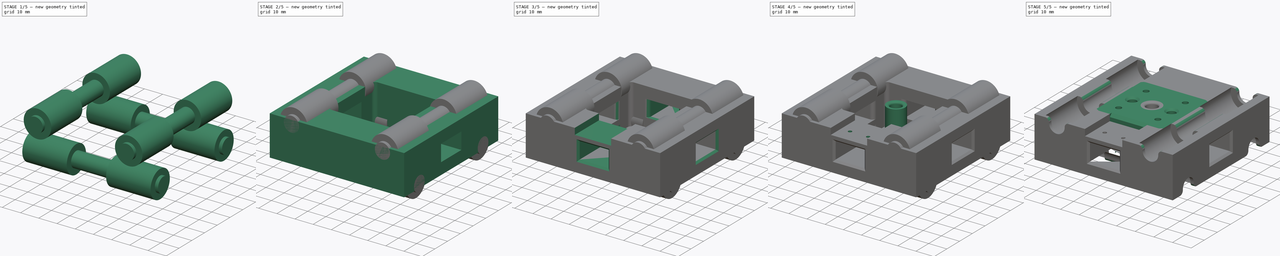
[diagram: build sequence overview — one tinted view per stage of 5, left to right]
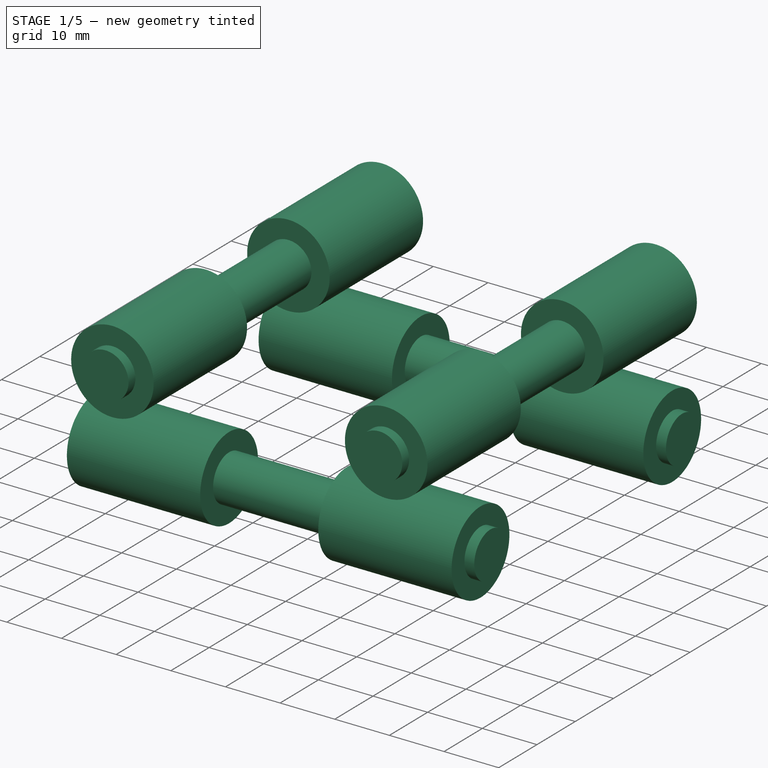
[diagram: stage 1 of 5 — iso view after this stage's code; geometry added in this stage tinted green]
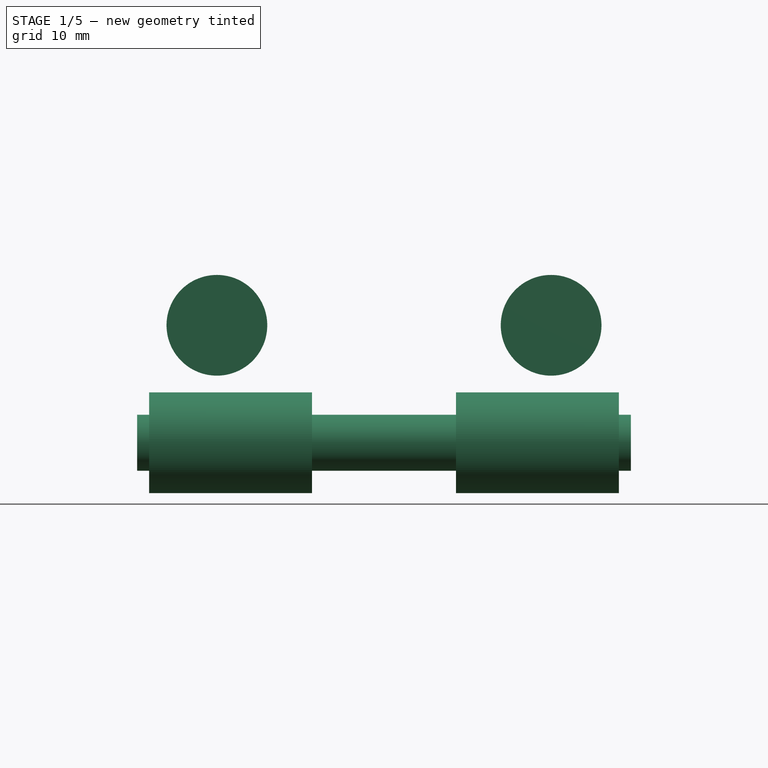
[diagram: stage 1 of 5 — front view after this stage's code; geometry added in this stage tinted green]
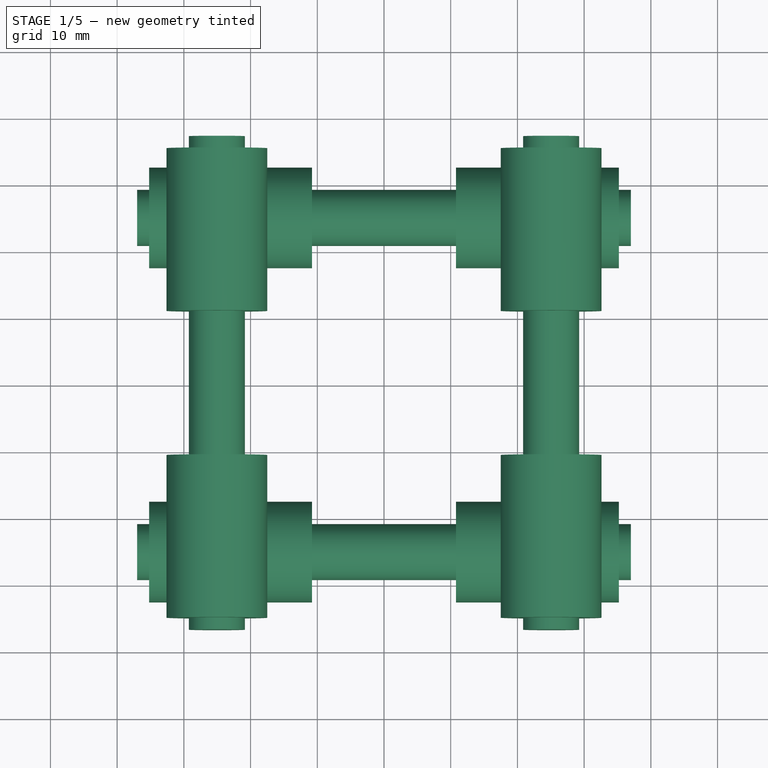
[diagram: stage 1 of 5 — top view after this stage's code; geometry added in this stage tinted green]
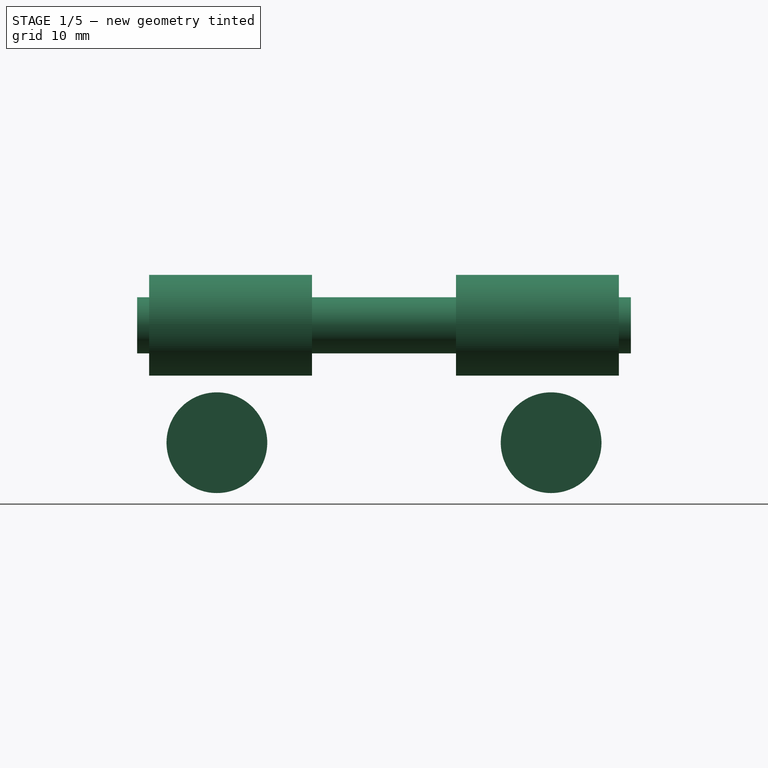
[diagram: stage 1 of 5 — right view after this stage's code; geometry added in this stage tinted green]
FCSTD DOCUMENT  (FreeCAD 0.19R24276 (Git))
Label: plotter-bearings-block
License: All rights reserved
LicenseURL: http://en.wikipedia.org/wiki/All_rights_reserved
objects: Sketcher::SketchObject×14, PartDesign::Body×8, PartDesign::Pocket×6, PartDesign::Pad×4, PartDesign::Revolution×4, PartDesign::Fillet×2, PartDesign::Chamfer×2, Part::MultiFuse×2, Spreadsheet::Sheet×1, Part::Cut×1, Part::Fillet×1, Part::Chamfer×1, App::Part×1
note: 63 computed .brp shape members not serialized (recipe doc carries the construction recipe); baked Part::Feature solids carry a one-line shape summary decoded from their .brp

FEATURE [Sketcher::SketchObject] Sketch025
  FullyConstrained = true
  MapMode = 5
  Placement = pos=(0,0,0) rot=(0.57735,0.57735,0.57735;2.0944rad)
  Support = -> [YZ_Plane006]
  expr: Constraints[27] = Spreadsheet.lm8uu_d / 2
  expr: Constraints[25] = Spreadsheet.lm8uu_l + 0.4
  expr: Constraints[24] = Spreadsheet.core_length
  sketch-geometry (12):
    g0: LineSegment StartX=-37 StartY=4.2 StartZ=0 EndX=-37 EndY=0 EndZ=0
    g1: LineSegment StartX=-37 StartY=0 StartZ=0 EndX=37 EndY=0 EndZ=0
    g2: LineSegment StartX=37 StartY=0 StartZ=0 EndX=37 EndY=4.2 EndZ=0
    g3: LineSegment StartX=37 StartY=4.2 StartZ=0 EndX=35.2 EndY=4.2 EndZ=0
    g4: LineSegment StartX=35.2 StartY=4.2 StartZ=0 EndX=35.2 EndY=7.55 EndZ=0
    g5: LineSegment StartX=35.2 StartY=7.55 StartZ=0 EndX=10.8 EndY=7.55 EndZ=0
    g6: LineSegment StartX=10.8 StartY=7.55 StartZ=0 EndX=10.8 EndY=4.2 EndZ=0
    g7: LineSegment StartX=10.8 StartY=4.2 StartZ=0 EndX=-10.8 EndY=4.2 EndZ=0
    g8: LineSegment StartX=-10.8 StartY=4.2 StartZ=0 EndX=-10.8 EndY=7.55 EndZ=0
    g9: LineSegment StartX=-10.8 StartY=7.55 StartZ=0 EndX=-35.2 EndY=7.55 EndZ=0
    g10: LineSegment StartX=-35.2 StartY=7.55 StartZ=0 EndX=-35.2 EndY=4.2 EndZ=0
    g11: LineSegment StartX=-35.2 StartY=4.2 StartZ=0 EndX=-37 EndY=4.2 EndZ=0
  constraints (30):
    c: PointOnObject(g0,g-1)
    c: Vertical(g0)
    c: Coincident(g0,g1)
    c: Coincident(g1,g2)
    c: Coincident(g2,g3)
    c: Horizontal(g3)
    c: Coincident(g3,g4)
    c: Vertical(g4)
    c: Coincident(g4,g5)
    c: Horizontal(g5)
    c: Coincident(g5,g6)
    c: Vertical(g6)
    c: Coincident(g6,g7)
    c: Coincident(g7,g8)
    c: Coincident(g8,g9)
    c: Coincident(g9,g10)
    c: Coincident(g10,g11)
    c: Coincident(g11,g0)
    c: Symmetric(g0,g1,g-1)
    c: Symmetric(g0,g2,g-2)
    c: Symmetric(g10,g3,g-2)
    c: Symmetric(g9,g4,g-2)
    c: Symmetric(g8,g5,g-2)
    c: Symmetric(g7,g6,g-2)
    c: DistanceX(g1,g1) = 74
    c: DistanceX(g9,g9) = 24.4
    c: DistanceY(g2,g2) = 4.2
    c: DistanceY(g1,g4) = 7.55
    c: Horizontal(g6,g2)
    c: DistanceX(g7,g7) = 21.6
FEATURE [PartDesign::Revolution] Revolution
  Angle = 360
  Axis = (1e-16,1,-1e-16)
  Base = (0,0,0)
  Placement = pos=(0,0,0) rot=(0.57735,0.57735,0.57735;2.0944rad)
  Profile = -> Sketch025
  ReferenceAxis = -> Y_Axis006
FEATURE [PartDesign::Body] Body005
  Group = -> [Sketch025,Revolution]
  Origin = -> Origin006
  Placement = pos=(25.05,0,19.8) rot=(0,0,1;0rad)
  Tip = -> Revolution
  expr: .Placement.Base.z = Spreadsheet.core_height / 2 + (Spreadsheet.belt_hole_height + Spreadsheet.rod_d) / 2
FEATURE [Sketcher::SketchObject] Sketch026
  FullyConstrained = true
  MapMode = 5
  Placement = pos=(0,0,0) rot=(0.57735,0.57735,0.57735;2.0944rad)
  Support = -> [YZ_Plane007]
  expr: Constraints[24] = Spreadsheet.core_length
  expr: Constraints[25] = Spreadsheet.lm8uu_l + 0.4
  expr: Constraints[27] = Spreadsheet.lm8uu_d / 2
  sketch-geometry (12):
    g0: LineSegment StartX=-37 StartY=4.2 StartZ=0 EndX=-37 EndY=0 EndZ=0
    g1: LineSegment StartX=-37 StartY=0 StartZ=0 EndX=37 EndY=0 EndZ=0
    g2: LineSegment StartX=37 StartY=0 StartZ=0 EndX=37 EndY=4.2 EndZ=0
    g3: LineSegment StartX=37 StartY=4.2 StartZ=0 EndX=35.2 EndY=4.2 EndZ=0
    g4: LineSegment StartX=35.2 StartY=4.2 StartZ=0 EndX=35.2 EndY=7.55 EndZ=0
    g5: LineSegment StartX=35.2 StartY=7.55 StartZ=0 EndX=10.8 EndY=7.55 EndZ=0
    g6: LineSegment StartX=10.8 StartY=7.55 StartZ=0 EndX=10.8 EndY=4.2 EndZ=0
    g7: LineSegment StartX=10.8 StartY=4.2 StartZ=0 EndX=-10.8 EndY=4.2 EndZ=0
    g8: LineSegment StartX=-10.8 StartY=4.2 StartZ=0 EndX=-10.8 EndY=7.55 EndZ=0
    g9: LineSegment StartX=-10.8 StartY=7.55 StartZ=0 EndX=-35.2 EndY=7.55 EndZ=0
    g10: LineSegment StartX=-35.2 StartY=7.55 StartZ=0 EndX=-35.2 EndY=4.2 EndZ=0
    g11: LineSegment StartX=-35.2 StartY=4.2 StartZ=0 EndX=-37 EndY=4.2 EndZ=0
  constraints (30):
    c: PointOnObject(g0,g-1)
    c: Vertical(g0)
    c: Coincident(g0,g1)
    c: Coincident(g1,g2)
    c: Coincident(g2,g3)
    c: Horizontal(g3)
    c: Coincident(g3,g4)
    c: Vertical(g4)
    c: Coincident(g4,g5)
    c: Horizontal(g5)
    c: Coincident(g5,g6)
    c: Vertical(g6)
    c: Coincident(g6,g7)
    c: Coincident(g7,g8)
    c: Coincident(g8,g9)
    c: Coincident(g9,g10)
    c: Coincident(g10,g11)
    c: Coincident(g11,g0)
    c: Symmetric(g0,g1,g-1)
    c: Symmetric(g0,g2,g-2)
    c: Symmetric(g10,g3,g-2)
    c: Symmetric(g9,g4,g-2)
    c: Symmetric(g8,g5,g-2)
    c: Symmetric(g7,g6,g-2)
    c: DistanceX(g1,g1) = 74
    c: DistanceX(g9,g9) = 24.4
    c: DistanceY(g2,g2) = 4.2
    c: DistanceY(g1,g4) = 7.55
    c: Horizontal(g6,g2)
    c: DistanceX(g7,g7) = 21.6
FEATURE [PartDesign::Revolution] Revolution001
  Angle = 360
  Axis = (1e-16,1,-1e-16)
  Base = (0,0,0)
  Placement = pos=(0,0,0) rot=(0.57735,0.57735,0.57735;2.0944rad)
  Profile = -> Sketch026
  ReferenceAxis = -> Y_Axis007
FEATURE [PartDesign::Body] Body006
  Group = -> [Sketch026,Revolution001]
  Origin = -> Origin007
  Placement = pos=(-25.05,0,19.8) rot=(0,0,1;0rad)
  Tip = -> Revolution001
  expr: .Placement.Base.z = Spreadsheet.core_height / 2 + (Spreadsheet.belt_hole_height + Spreadsheet.rod_d) / 2
FEATURE [Sketcher::SketchObject] Sketch027
  FullyConstrained = true
  MapMode = 5
  Placement = pos=(0,0,0) rot=(1,0,0;1.5708rad)
  Support = -> [XZ_Plane008]
  expr: Constraints[24] = Spreadsheet.core_length
  expr: Constraints[25] = Spreadsheet.lm8uu_l + 0.4
  expr: Constraints[27] = Spreadsheet.lm8uu_d / 2
  sketch-geometry (12):
    g0: LineSegment StartX=-37 StartY=4.2 StartZ=0 EndX=-37 EndY=0 EndZ=0
    g1: LineSegment StartX=-37 StartY=0 StartZ=0 EndX=37 EndY=0 EndZ=0
    g2: LineSegment StartX=37 StartY=0 StartZ=0 EndX=37 EndY=4.2 EndZ=0
    g3: LineSegment StartX=37 StartY=4.2 StartZ=0 EndX=35.2 EndY=4.2 EndZ=0
    g4: LineSegment StartX=35.2 StartY=4.2 StartZ=0 EndX=35.2 EndY=7.55 EndZ=0
    g5: LineSegment StartX=35.2 StartY=7.55 StartZ=0 EndX=10.8 EndY=7.55 EndZ=0
    g6: LineSegment StartX=10.8 StartY=7.55 StartZ=0 EndX=10.8 EndY=4.2 EndZ=0
    g7: LineSegment StartX=10.8 StartY=4.2 StartZ=0 EndX=-10.8 EndY=4.2 EndZ=0
    g8: LineSegment StartX=-10.8 StartY=4.2 StartZ=0 EndX=-10.8 EndY=7.55 EndZ=0
    g9: LineSegment StartX=-10.8 StartY=7.55 StartZ=0 EndX=-35.2 EndY=7.55 EndZ=0
    g10: LineSegment StartX=-35.2 StartY=7.55 StartZ=0 EndX=-35.2 EndY=4.2 EndZ=0
    g11: LineSegment StartX=-35.2 StartY=4.2 StartZ=0 EndX=-37 EndY=4.2 EndZ=0
  constraints (30):
    c: PointOnObject(g0,g-1)
    c: Vertical(g0)
    c: Coincident(g0,g1)
    c: Coincident(g1,g2)
    c: Coincident(g2,g3)
    c: Horizontal(g3)
    c: Coincident(g3,g4)
    c: Vertical(g4)
    c: Coincident(g4,g5)
    c: Horizontal(g5)
    c: Coincident(g5,g6)
    c: Vertical(g6)
    c: Coincident(g6,g7)
    c: Coincident(g7,g8)
    c: Coincident(g8,g9)
    c: Coincident(g9,g10)
    c: Coincident(g10,g11)
    c: Coincident(g11,g0)
    c: Symmetric(g0,g1,g-1)
    c: Symmetric(g0,g2,g-2)
    c: Symmetric(g10,g3,g-2)
    c: Symmetric(g9,g4,g-2)
    c: Symmetric(g8,g5,g-2)
    c: Symmetric(g7,g6,g-2)
    c: DistanceX(g1,g1) = 74
    c: DistanceX(g9,g9) = 24.4
    c: DistanceY(g2,g2) = 4.2
    c: DistanceY(g1,g4) = 7.55
    c: Horizontal(g6,g2)
    c: DistanceX(g7,g7) = 21.6
FEATURE [PartDesign::Revolution] Revolution002
  Angle = 360
  Axis = (1,0,0)
  Base = (0,0,0)
  Placement = pos=(0,0,0) rot=(1,0,0;1.5708rad)
  Profile = -> Sketch027
  ReferenceAxis = -> X_Axis008
FEATURE [PartDesign::Body] Body007
  Group = -> [Sketch027,Revolution002]
  Origin = -> Origin008
  Placement = pos=(0,25.05,2.2) rot=(0,0,1;0rad)
  Tip = -> Revolution002
  expr: .Placement.Base.z = Spreadsheet.core_height / 2 - (Spreadsheet.belt_hole_height + Spreadsheet.rod_d) / 2
FEATURE [Sketcher::SketchObject] Sketch028
  FullyConstrained = true
  MapMode = 5
  Placement = pos=(0,0,0) rot=(1,0,0;1.5708rad)
  Support = -> [XZ_Plane009]
  expr: Constraints[27] = Spreadsheet.lm8uu_d / 2
  expr: Constraints[25] = Spreadsheet.lm8uu_l + 0.4
  expr: Constraints[24] = Spreadsheet.core_length
  sketch-geometry (12):
    g0: LineSegment StartX=-37 StartY=4.2 StartZ=0 EndX=-37 EndY=0 EndZ=0
    g1: LineSegment StartX=-37 StartY=0 StartZ=0 EndX=37 EndY=0 EndZ=0
    g2: LineSegment StartX=37 StartY=0 StartZ=0 EndX=37 EndY=4.2 EndZ=0
    g3: LineSegment StartX=37 StartY=4.2 StartZ=0 EndX=35.2 EndY=4.2 EndZ=0
    g4: LineSegment StartX=35.2 StartY=4.2 StartZ=0 EndX=35.2 EndY=7.55 EndZ=0
    g5: LineSegment StartX=35.2 StartY=7.55 StartZ=0 EndX=10.8 EndY=7.55 EndZ=0
    g6: LineSegment StartX=10.8 StartY=7.55 StartZ=0 EndX=10.8 EndY=4.2 EndZ=0
    g7: LineSegment StartX=10.8 StartY=4.2 StartZ=0 EndX=-10.8 EndY=4.2 EndZ=0
    g8: LineSegment StartX=-10.8 StartY=4.2 StartZ=0 EndX=-10.8 EndY=7.55 EndZ=0
    g9: LineSegment StartX=-10.8 StartY=7.55 StartZ=0 EndX=-35.2 EndY=7.55 EndZ=0
    g10: LineSegment StartX=-35.2 StartY=7.55 StartZ=0 EndX=-35.2 EndY=4.2 EndZ=0
    g11: LineSegment StartX=-35.2 StartY=4.2 StartZ=0 EndX=-37 EndY=4.2 EndZ=0
  constraints (30):
    c: PointOnObject(g0,g-1)
    c: Vertical(g0)
    c: Coincident(g0,g1)
    c: Coincident(g1,g2)
    c: Coincident(g2,g3)
    c: Horizontal(g3)
    c: Coincident(g3,g4)
    c: Vertical(g4)
    c: Coincident(g4,g5)
    c: Horizontal(g5)
    c: Coincident(g5,g6)
    c: Vertical(g6)
    c: Coincident(g6,g7)
    c: Coincident(g7,g8)
    c: Coincident(g8,g9)
    c: Coincident(g9,g10)
    c: Coincident(g10,g11)
    c: Coincident(g11,g0)
    c: Symmetric(g0,g1,g-1)
    c: Symmetric(g0,g2,g-2)
    c: Symmetric(g10,g3,g-2)
    c: Symmetric(g9,g4,g-2)
    c: Symmetric(g8,g5,g-2)
    c: Symmetric(g7,g6,g-2)
    c: DistanceX(g1,g1) = 74
    c: DistanceX(g9,g9) = 24.4
    c: DistanceY(g2,g2) = 4.2
    c: DistanceY(g1,g4) = 7.55
    c: Horizontal(g6,g2)
    c: DistanceX(g7,g7) = 21.6
FEATURE [PartDesign::Revolution] Revolution003
  Angle = 360
  Axis = (1,0,0)
  Base = (0,0,0)
  Placement = pos=(0,0,0) rot=(1,0,0;1.5708rad)
  Profile = -> Sketch028
  ReferenceAxis = -> X_Axis009
FEATURE [PartDesign::Body] Body008
  Group = -> [Sketch028,Revolution003]
  Origin = -> Origin009
  Placement = pos=(0,-25.05,2.2) rot=(0,0,1;0rad)
  Tip = -> Revolution003
  expr: .Placement.Base.z = Spreadsheet.core_height / 2 - (Spreadsheet.belt_hole_height + Spreadsheet.rod_d) / 2
FEATURE [Part::MultiFuse] Fusion001  label="BearingHoles"
  Shapes = -> [Body005,Body006,Body007,Body008]
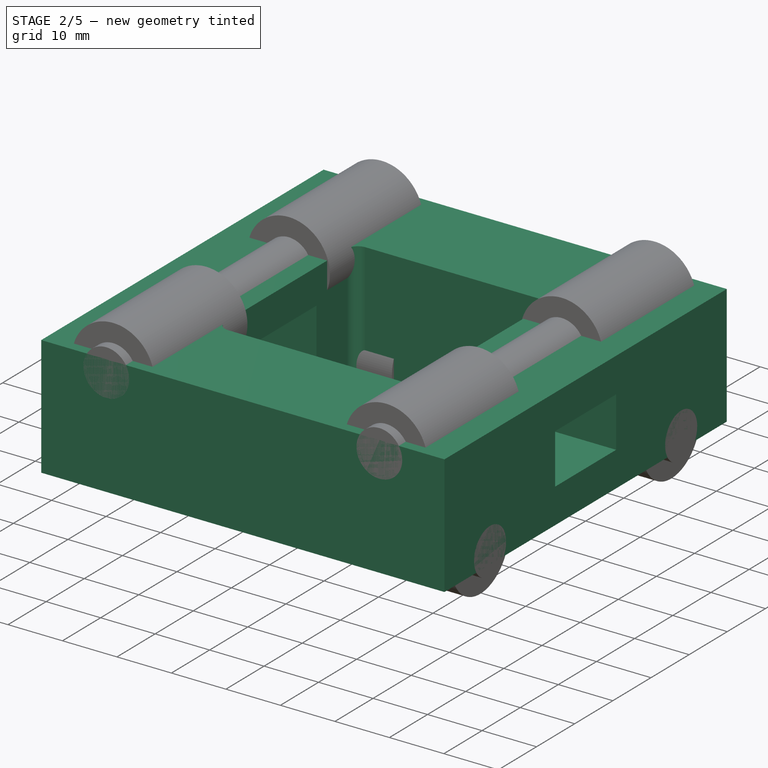
[diagram: stage 2 of 5 — iso view after this stage's code; geometry added in this stage tinted green]
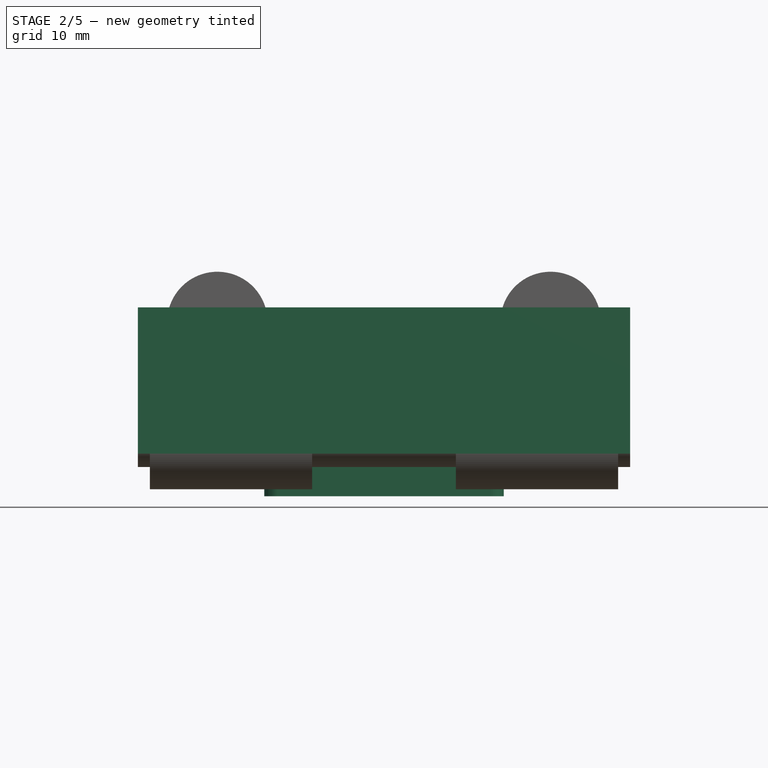
[diagram: stage 2 of 5 — front view after this stage's code; geometry added in this stage tinted green]
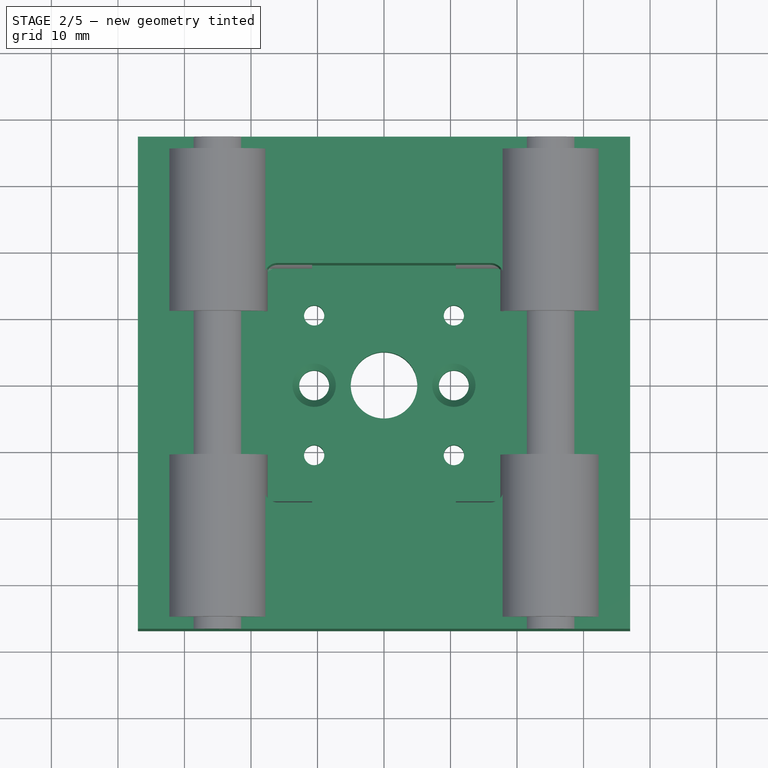
[diagram: stage 2 of 5 — top view after this stage's code; geometry added in this stage tinted green]
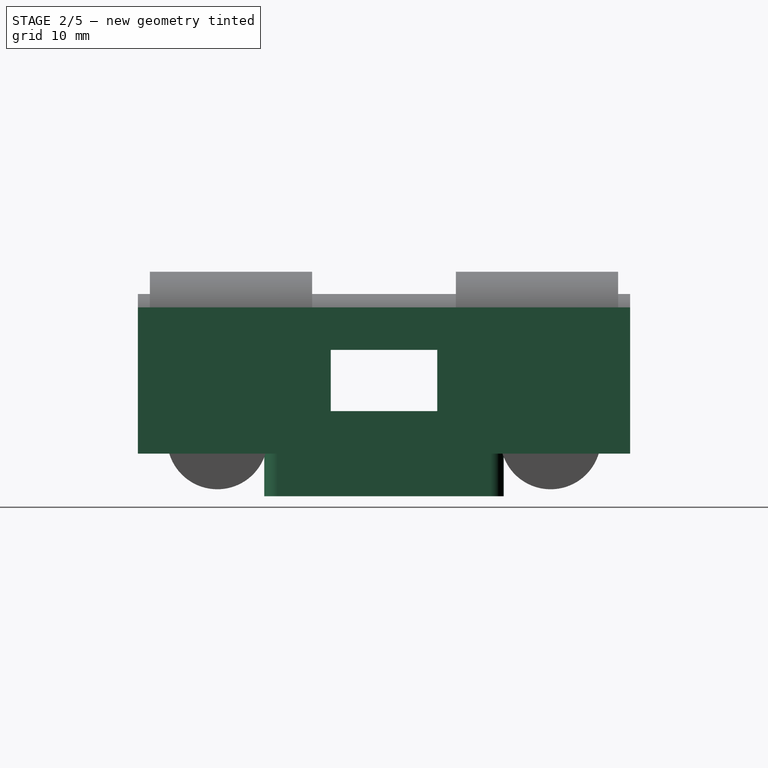
[diagram: stage 2 of 5 — right view after this stage's code; geometry added in this stage tinted green]
FEATURE [Spreadsheet::Sheet] Spreadsheet  label="Specs"
  cells = A5=Core length; B5(core_length)=74; A6=Core heigth; B6(core_height)=22; A7=Core inner length; B7(core_inner_length)=36; A9=Belt hole heigth; B9(belt_hole_height)=9.199999999999999; A10=Belt hole width; B10(belt_hole_width)=16; A12=LM8UU Diameter; B12(lm8uu_d)=15.1; A13=Rod Diameter; B13(rod_d)=8.4; A14=LM8UU Legth; B14(lm8uu_l)=24; A16=nema_l; B16(nema_l)=42; A17=nema_hole_d; B17(nema_hole_d)=3; A18=nema_hole_pos; B18(nema_hole_pos)==31 / 2
FEATURE [Sketcher::SketchObject] Sketch015
  FullyConstrained = true
  MapMode = 5
  Support = -> [XY_Plane002]
  expr: Constraints[18] = Spreadsheet.core_length
  expr: Constraints[19] = Spreadsheet.core_inner_length
  sketch-geometry (12):
    g0: LineSegment StartX=-37 StartY=37 StartZ=0 EndX=37 EndY=37 EndZ=0
    g1: LineSegment StartX=37 StartY=37 StartZ=0 EndX=37 EndY=-37 EndZ=0
    g2: LineSegment StartX=37 StartY=-37 StartZ=0 EndX=-37 EndY=-37 EndZ=0
    g3: LineSegment StartX=-37 StartY=-37 StartZ=0 EndX=-37 EndY=37 EndZ=0
    g4: LineSegment StartX=-16 StartY=18 StartZ=0 EndX=16 EndY=18 EndZ=0
    g5: LineSegment StartX=18 StartY=16 StartZ=0 EndX=18 EndY=-16 EndZ=0
    g6: LineSegment StartX=16 StartY=-18 StartZ=0 EndX=-16 EndY=-18 EndZ=0
    g7: LineSegment StartX=-18 StartY=-16 StartZ=0 EndX=-18 EndY=16 EndZ=0
    g8: ArcOfCircle CenterX=16 CenterY=16 CenterZ=0 NormalX=0 NormalY=0 NormalZ=1 AngleXU=0 Radius=2 StartAngle=-6.13e-14 EndAngle=1.5708
    g9: ArcOfCircle CenterX=-16 CenterY=16 CenterZ=0 NormalX=0 NormalY=0 NormalZ=1 AngleXU=0 Radius=2 StartAngle=1.5708 EndAngle=3.14159
    g10: ArcOfCircle CenterX=-16 CenterY=-16 CenterZ=0 NormalX=0 NormalY=0 NormalZ=1 AngleXU=0 Radius=2 StartAngle=3.14159 EndAngle=4.71239
    g11: ArcOfCircle CenterX=16 CenterY=-16 CenterZ=0 NormalX=0 NormalY=0 NormalZ=1 AngleXU=0 Radius=2 StartAngle=4.71239 EndAngle=6.28319
  constraints (28):
    c: Coincident(g0,g1)
    c: Coincident(g1,g2)
    c: Coincident(g2,g3)
    c: Coincident(g3,g0)
    c: Horizontal(g0)
    c: Vertical(g1)
    c: Horizontal(g4)
    c: Horizontal(g6)
    c: Vertical(g5)
    c: Vertical(g7)
    c: Tangent(g4,g8) = 1.5708
    c: Tangent(g5,g8) = 1.5708
    c: Tangent(g4,g9) = 1.5708
    c: Tangent(g7,g9) = 1.5708
    c: Tangent(g6,g10) = 1.5708
    c: Tangent(g7,g10) = 1.5708
    c: Tangent(g5,g11) = 1.5708
    c: Tangent(g6,g11) = 1.5708
    c: DistanceX(g0,g0) = 74
    c: DistanceX(g7,g5) = 36
    c: Symmetric(g0,g2,g-1)
    c: Symmetric(g0,g1,g-1)
    c: Equal(g0,g1)
    c: Symmetric(g9,g11,g-1)
    c: Symmetric(g8,g10,g-1)
    c: Equal(g4,g5)
    c: Equal(g9,g8)
    c: Radius(g8) = 2
FEATURE [PartDesign::Pad] Pad004
  Direction = (1,1,1)
  Length = 22
  Length2 = 100
  Profile = -> Sketch015
  Type = 0
  expr: Length = Spreadsheet.core_height
FEATURE [Sketcher::SketchObject] Sketch016
  FullyConstrained = true
  MapMode = 5
  Placement = pos=(0,0,0) rot=(0.57735,0.57735,0.57735;2.0944rad)
  Support = -> [YZ_Plane002]
  expr: Constraints[10] = (Spreadsheet.core_height - Spreadsheet.belt_hole_height) / 2
  expr: Constraints[8] = Spreadsheet.belt_hole_height
  expr: Constraints[7] = Spreadsheet.belt_hole_width
  sketch-geometry (4):
    g0: LineSegment StartX=-8 StartY=15.6 StartZ=0 EndX=8 EndY=15.6 EndZ=0
    g1: LineSegment StartX=8 StartY=15.6 StartZ=0 EndX=8 EndY=6.4 EndZ=0
    g2: LineSegment StartX=8 StartY=6.4 StartZ=0 EndX=-8 EndY=6.4 EndZ=0
    g3: LineSegment StartX=-8 StartY=6.4 StartZ=0 EndX=-8 EndY=15.6 EndZ=0
  constraints (11):
    c: Coincident(g0,g1)
    c: Coincident(g1,g2)
    c: Coincident(g2,g3)
    c: Coincident(g3,g0)
    c: Horizontal(g2)
    c: Vertical(g1)
    c: Vertical(g3)
    c: DistanceX(g0,g0) = 16
    c: DistanceY(g1,g1) = 9.2
    c: Symmetric(g0,g0,g-2)
    c: DistanceY(g-1,g1) = 6.4
FEATURE [PartDesign::Pocket] Pocket010
  BaseFeature = -> Pad004
  Length = 5
  Length2 = 100
  Midplane = true
  Profile = -> Sketch016
  Type = 1
FEATURE [PartDesign::Body] Body002  label="InnerCoreBottom"
  Group = -> [Sketch018,Pad005]
  Origin = -> Origin003
  Tip = -> Pad005
FEATURE [Sketcher::SketchObject] Sketch019  label="InnerCoreSketch001"
  FullyConstrained = true
  MapMode = 5
  Support = -> [XY_Plane004]
  expr: Label = <<InnerCoreSketch>>
  expr: Constraints[14] = Spreadsheet.core_inner_length
  expr: Constraints[17] = Spreadsheet.core_inner_length
  sketch-geometry (19):
    g0: LineSegment StartX=-16 StartY=18 StartZ=0 EndX=16 EndY=18 EndZ=0
    g1: LineSegment StartX=18 StartY=16 StartZ=0 EndX=18 EndY=-16 EndZ=0
    g2: LineSegment StartX=16 StartY=-18 StartZ=0 EndX=-16 EndY=-18 EndZ=0
    g3: LineSegment StartX=-18 StartY=-16 StartZ=0 EndX=-18 EndY=16 EndZ=0
    g4: ArcOfCircle CenterX=16 CenterY=16 CenterZ=0 NormalX=0 NormalY=0 NormalZ=1 AngleXU=0 Radius=2 StartAngle=5.618e-13 EndAngle=1.5708
    g5: ArcOfCircle CenterX=-16 CenterY=16 CenterZ=0 NormalX=0 NormalY=0 NormalZ=1 AngleXU=0 Radius=2 StartAngle=1.5708 EndAngle=3.14159
    g6: ArcOfCircle CenterX=-16 CenterY=-16 CenterZ=0 NormalX=0 NormalY=0 NormalZ=1 AngleXU=0 Radius=2 StartAngle=3.14159 EndAngle=4.71239
    g7: ArcOfCircle CenterX=16 CenterY=-16 CenterZ=0 NormalX=0 NormalY=0 NormalZ=1 AngleXU=0 Radius=2 StartAngle=4.71239 EndAngle=6.28319
    g8: Circle CenterX=0 CenterY=0 CenterZ=0 NormalX=0 NormalY=0 NormalZ=1 AngleXU=0 Radius=5
    g9: Circle CenterX=-10.5 CenterY=10.5 CenterZ=0 NormalX=0 NormalY=0 NormalZ=1 AngleXU=0 Radius=1.525
    g10: Circle CenterX=10.5 CenterY=10.5 CenterZ=0 NormalX=0 NormalY=0 NormalZ=1 AngleXU=0 Radius=1.525
    g11: Circle CenterX=10.5 CenterY=-10.5 CenterZ=0 NormalX=0 NormalY=0 NormalZ=1 AngleXU=0 Radius=1.525
    g12: Circle CenterX=-10.5 CenterY=-10.5 CenterZ=0 NormalX=0 NormalY=0 NormalZ=1 AngleXU=0 Radius=1.525
    g13: Circle CenterX=-10.5 CenterY=10.5 CenterZ=0 NormalX=0 NormalY=0 NormalZ=1 AngleXU=0 Radius=6.5
    g14: Circle CenterX=10.5 CenterY=10.5 CenterZ=0 NormalX=0 NormalY=0 NormalZ=1 AngleXU=0 Radius=6.5
    g15: Circle CenterX=-10.5 CenterY=-10.5 CenterZ=0 NormalX=0 NormalY=0 NormalZ=1 AngleXU=0 Radius=6.5
    g16: Circle CenterX=10.5 CenterY=-10.5 CenterZ=0 NormalX=0 NormalY=0 NormalZ=1 AngleXU=0 Radius=6.5
    g17: Circle CenterX=-10.5 CenterY=-1.1e-15 CenterZ=0 NormalX=0 NormalY=0 NormalZ=1 AngleXU=0 Radius=2.25
    g18: Circle CenterX=10.5 CenterY=0 CenterZ=0 NormalX=0 NormalY=0 NormalZ=1 AngleXU=0 Radius=2.25
  constraints (43):
    c: Horizontal(g0)
    c: Horizontal(g2)
    c: Vertical(g1)
    c: Vertical(g3)
    c: Tangent(g0,g4) = 1.5708
    c: Tangent(g1,g4) = 1.5708
    c: Tangent(g0,g5) = 1.5708
    c: Tangent(g3,g5) = 1.5708
    c: Tangent(g2,g6) = 1.5708
    c: Tangent(g3,g6) = 1.5708
    c: Tangent(g1,g7) = 1.5708
    c: Tangent(g2,g7) = 1.5708
    c: Symmetric(g4,g6,g-1)
    c: Symmetric(g5,g7,g-1)
    c: DistanceX(g3,g1) = 36
    c: Radius(g6) = 2
    c: Equal(g6,g5)
    c: DistanceY(g2,g0) = 36
    c: Coincident(g8,g-1)
    c: Diameter(g8) = 10
    c: Symmetric(g9,g11,g8)
    c: Symmetric(g10,g12,g8)
    c: Diameter(g9) = 3.05
    c: Equal(g9,g10)
    c: Equal(g9,g11)
    c: Equal(g9,g12)
    c: Horizontal(g9,g10)
    c: Vertical(g9,g12)
    c: Coincident(g13,g9)
    c: Coincident(g14,g10)
    c: Coincident(g15,g12)
    c: Coincident(g16,g11)
    c: Diameter(g13) = 13
    c: Equal(g13,g14)
    c: Equal(g13,g16)
    c: Equal(g13,g15)
    c: DistanceX(g9,g10) = 21
    c: DistanceY(g11,g10) = 21
    c: Symmetric(g17,g18,g8)
    c: Vertical(g10,g18)
    c: Horizontal(g8,g18)
    c: Diameter(g18) = 4.5
    c: Equal(g18,g17)
FEATURE [PartDesign::Pad] Pad006
  Direction = (1,1,1)
  Length = 6.4
  Length2 = 100
  Profile = -> Sketch019
  Reversed = true
  Type = 0
  expr: Length = (Spreadsheet.core_height - Spreadsheet.belt_hole_height) / 2
FEATURE [PartDesign::Body] Body001  label="OuterBlock"
  Group = -> [Sketch015,Pad004,Sketch016,Pocket010,Sketch017,Pocket011,Fillet004,Chamfer003,Sketch021,Pocket012,Sketch022,Pocket013,Sketch023,Pocket014,Sketch024,Pocket015]
  Origin = -> Origin002
  Tip = -> Pocket015
FEATURE [PartDesign::Chamfer] Chamfer004
  Angle = 45
  Base = -> Pad006 [Edge32,Edge29]
  BaseFeature = -> Pad006
  ChamferType = 0
  FlipDirection = false
  Size = 1
  Size2 = 1
  SupportTransform = false
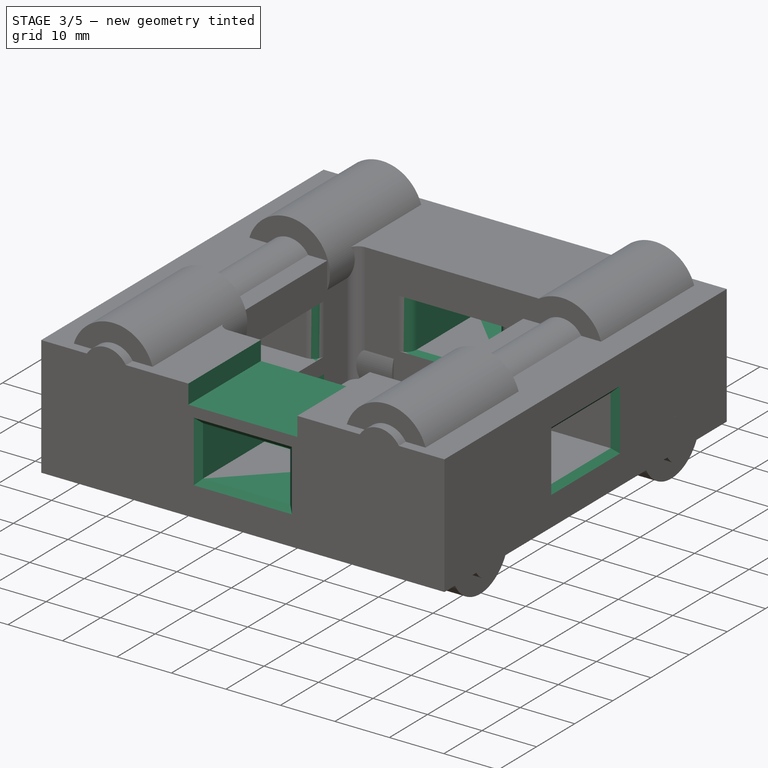
[diagram: stage 3 of 5 — iso view after this stage's code; geometry added in this stage tinted green]
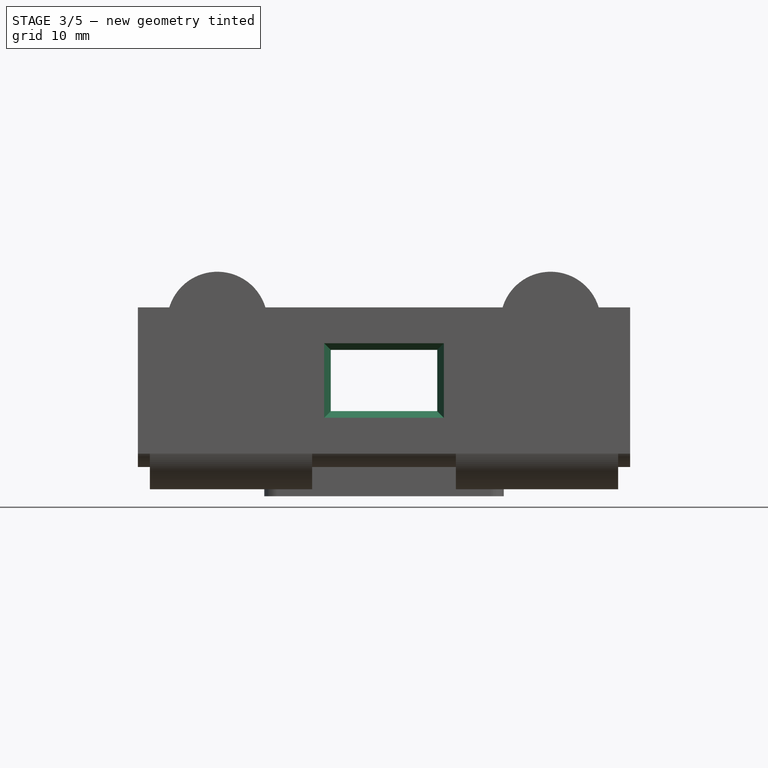
[diagram: stage 3 of 5 — front view after this stage's code; geometry added in this stage tinted green]
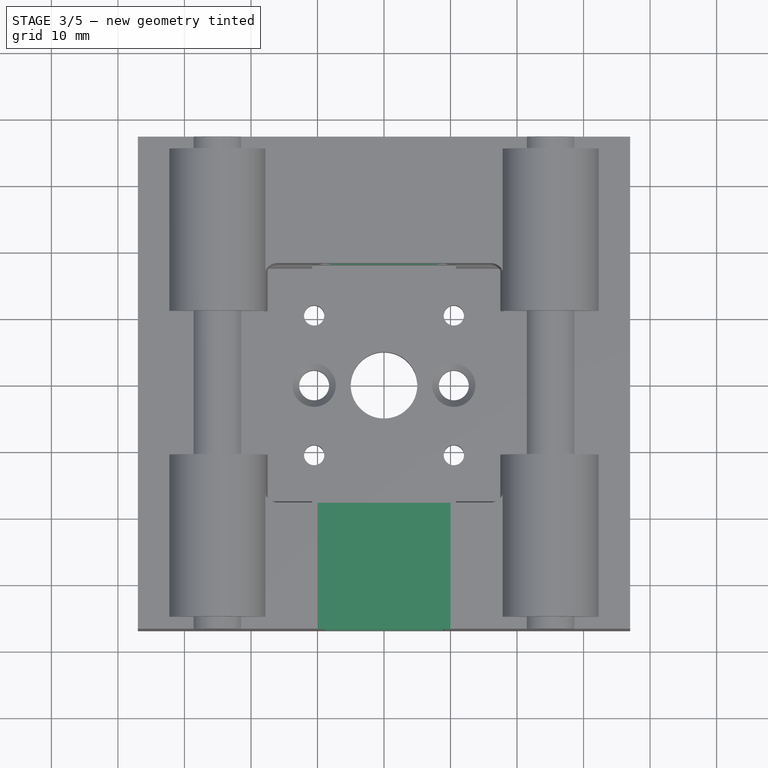
[diagram: stage 3 of 5 — top view after this stage's code; geometry added in this stage tinted green]
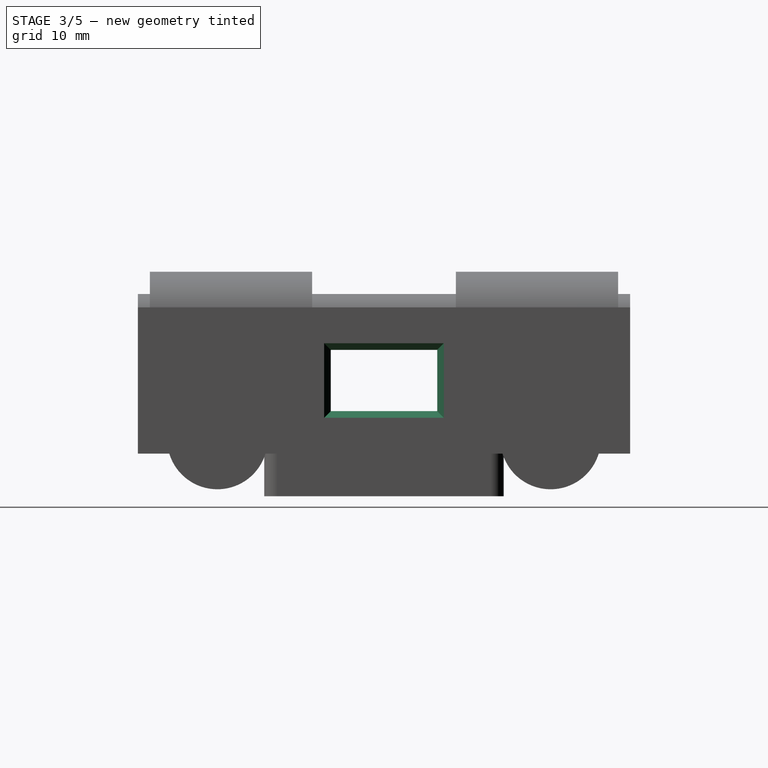
[diagram: stage 3 of 5 — right view after this stage's code; geometry added in this stage tinted green]
FEATURE [Sketcher::SketchObject] Sketch017
  FullyConstrained = true
  MapMode = 5
  Placement = pos=(0,0,0) rot=(1,0,0;1.5708rad)
  Support = -> [XZ_Plane002]
  expr: Constraints[10] = (Spreadsheet.core_height - Spreadsheet.belt_hole_height) / 2
  expr: Constraints[9] = Spreadsheet.belt_hole_height
  expr: Constraints[8] = Spreadsheet.belt_hole_width
  sketch-geometry (4):
    g0: LineSegment StartX=-8 StartY=15.6 StartZ=0 EndX=8 EndY=15.6 EndZ=0
    g1: LineSegment StartX=8 StartY=15.6 StartZ=0 EndX=8 EndY=6.4 EndZ=0
    g2: LineSegment StartX=8 StartY=6.4 StartZ=0 EndX=-8 EndY=6.4 EndZ=0
    g3: LineSegment StartX=-8 StartY=6.4 StartZ=0 EndX=-8 EndY=15.6 EndZ=0
  constraints (11):
    c: Coincident(g0,g1)
    c: Coincident(g1,g2)
    c: Coincident(g2,g3)
    c: Coincident(g3,g0)
    c: Horizontal(g2)
    c: Vertical(g1)
    c: Vertical(g3)
    c: Symmetric(g0,g0,g-2)
    c: DistanceX(g0,g0) = 16
    c: DistanceY(g1,g1) = 9.2
    c: DistanceY(g-1,g1) = 6.4
FEATURE [PartDesign::Pocket] Pocket011
  BaseFeature = -> Pocket010
  Length = 5
  Length2 = 100
  Midplane = true
  Profile = -> Sketch017
  Type = 1
FEATURE [PartDesign::Fillet] Fillet004
  Base = -> Pocket011 [Edge58,Edge53,Edge66,Edge68,Edge46,Edge41,Edge74,Edge72]
  BaseFeature = -> Pocket011
  Radius = 2
  SupportTransform = false
FEATURE [PartDesign::Chamfer] Chamfer003
  Angle = 45
  Base = -> Fillet004 [Edge19,Edge3,Edge7,Edge18,Edge34,Edge37,Edge36,Edge35,Edge63,Edge66,Edge64,Edge65,Edge59,Edge60,Edge58,Edge57]
  BaseFeature = -> Fillet004
  ChamferType = 0
  FlipDirection = false
  Size = 1
  Size2 = 1
  SupportTransform = false
FEATURE [PartDesign::Body] Body004  label="CenterHole"
  Group = -> [Sketch020,Pad007,Fillet005]
  Origin = -> Origin005
  Tip = -> Fillet005
FEATURE [Sketcher::SketchObject] Sketch021
  ExternalGeometry = -> [Chamfer003]
  FullyConstrained = true
  MapMode = 5
  Placement = pos=(0,0,22) rot=(0,0,1;0rad)
  Support = -> [Chamfer003]
  sketch-geometry (4):
    g0: LineSegment StartX=-10 StartY=-18 StartZ=0 EndX=10 EndY=-18 EndZ=0
    g1: LineSegment StartX=10 StartY=-18 StartZ=0 EndX=10 EndY=-37 EndZ=0
    g2: LineSegment StartX=10 StartY=-37 StartZ=0 EndX=-10 EndY=-37 EndZ=0
    g3: LineSegment StartX=-10 StartY=-37 StartZ=0 EndX=-10 EndY=-18 EndZ=0
  constraints (11):
    c: Coincident(g0,g1)
    c: Coincident(g1,g2)
    c: Coincident(g2,g3)
    c: Coincident(g3,g0)
    c: Horizontal(g2)
    c: Vertical(g1)
    c: Vertical(g3)
    c: Symmetric(g0,g0,g-2)
    c: Horizontal(g1,g-3)
    c: DistanceX(g2,g2) = 20
    c: Horizontal(g0,g-4)
FEATURE [PartDesign::Pocket] Pocket012
  BaseFeature = -> Chamfer003
  Length = 3.5
  Length2 = 100
  Profile = -> Sketch021
  Type = 0
FEATURE [Sketcher::SketchObject] Sketch022
  ExternalGeometry = -> [Pocket012]
  FullyConstrained = true
  MapMode = 5
  Placement = pos=(0,0,0) rot=(1,0,0;3.14159rad)
  Support = -> [Pocket012]
  sketch-geometry (4):
    g0: LineSegment StartX=-37 StartY=10 StartZ=0 EndX=-18 EndY=10 EndZ=0
    g1: LineSegment StartX=-18 StartY=10 StartZ=0 EndX=-18 EndY=-10 EndZ=0
    g2: LineSegment StartX=-18 StartY=-10 StartZ=0 EndX=-37 EndY=-10 EndZ=0
    g3: LineSegment StartX=-37 StartY=-10 StartZ=0 EndX=-37 EndY=10 EndZ=0
  constraints (11):
    c: Coincident(g0,g1)
    c: Coincident(g1,g2)
    c: Coincident(g2,g3)
    c: Coincident(g3,g0)
    c: Horizontal(g0)
    c: Vertical(g3)
    c: Symmetric(g0,g1,g-1)
    c: Horizontal(g2)
    c: Vertical(g0,g-4)
    c: Vertical(g0,g-3)
    c: DistanceY(g3,g3) = 20
FEATURE [PartDesign::Pocket] Pocket013
  BaseFeature = -> Pocket012
  Length = 3.5
  Length2 = 100
  Profile = -> Sketch022
  Type = 0
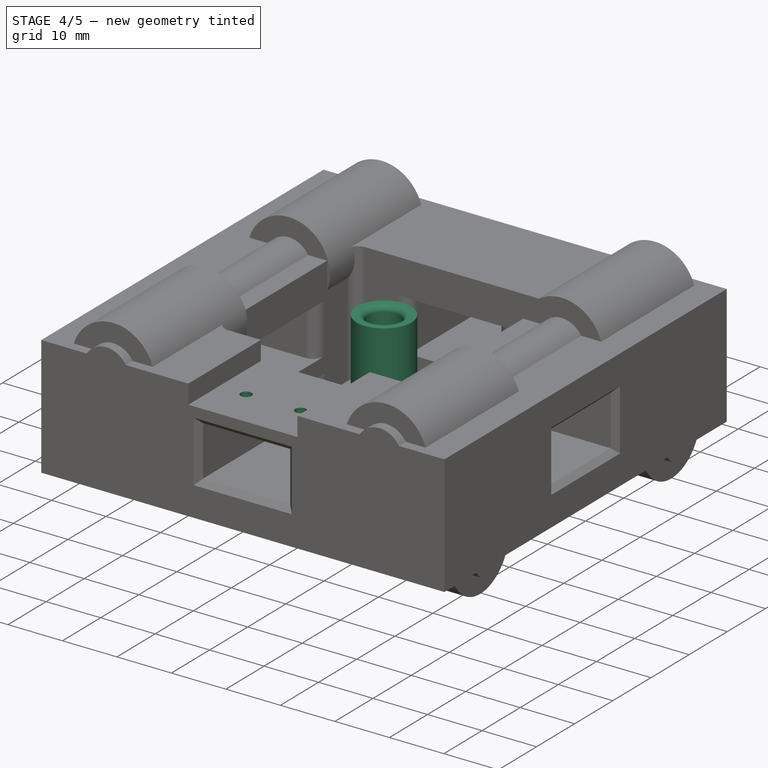
[diagram: stage 4 of 5 — iso view after this stage's code; geometry added in this stage tinted green]
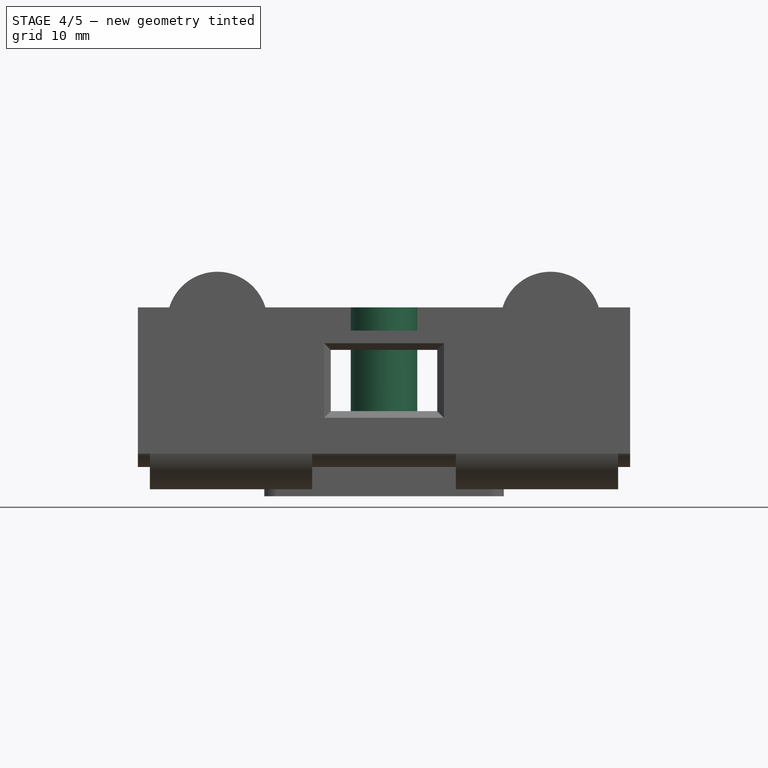
[diagram: stage 4 of 5 — front view after this stage's code; geometry added in this stage tinted green]
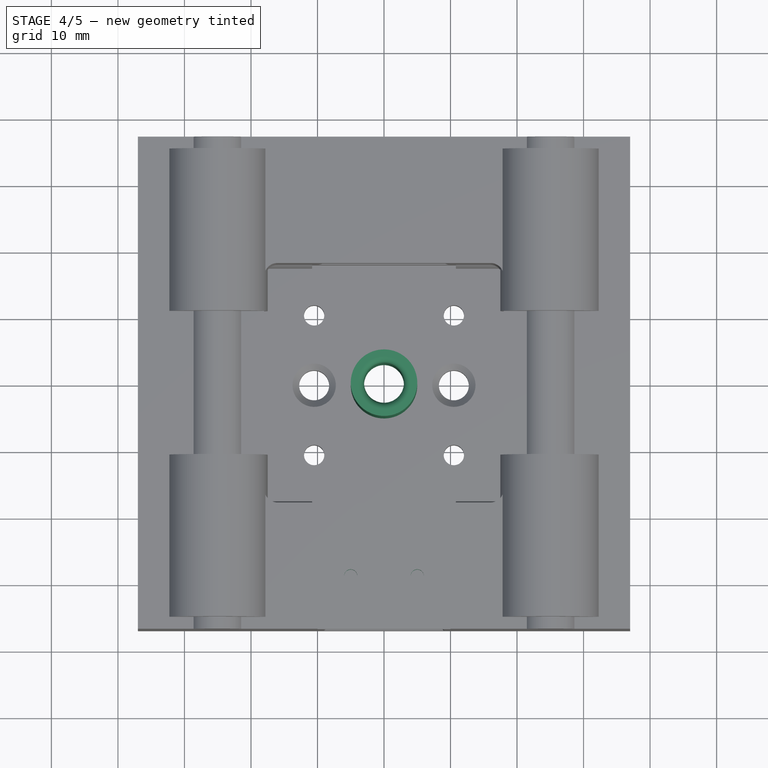
[diagram: stage 4 of 5 — top view after this stage's code; geometry added in this stage tinted green]
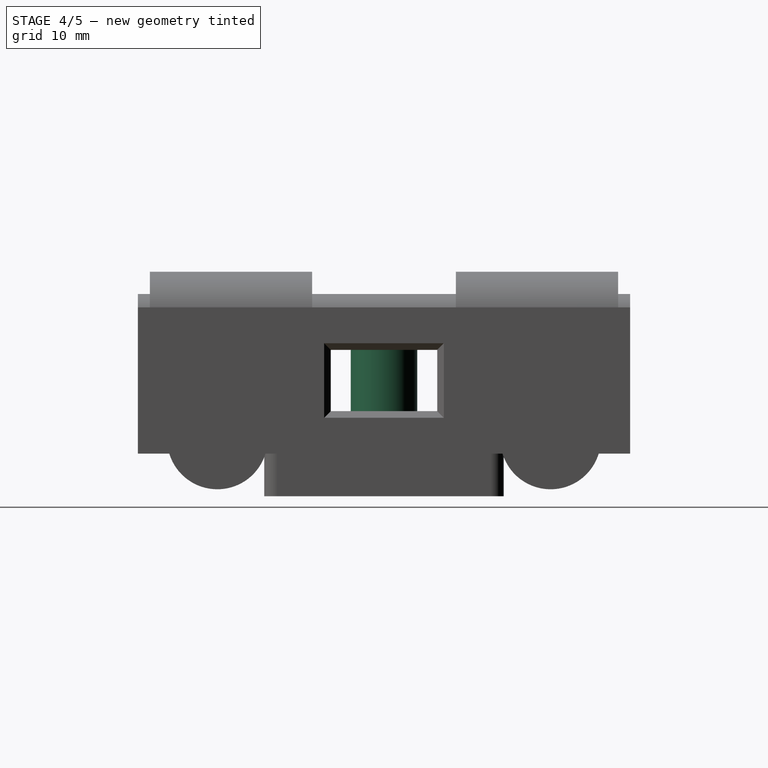
[diagram: stage 4 of 5 — right view after this stage's code; geometry added in this stage tinted green]
FEATURE [Sketcher::SketchObject] Sketch020
  FullyConstrained = true
  MapMode = 5
  Support = -> [XY_Plane005]
  sketch-geometry (2):
    g0: Circle CenterX=0 CenterY=0 CenterZ=0 NormalX=0 NormalY=0 NormalZ=1 AngleXU=0 Radius=5
    g1: Circle CenterX=0 CenterY=0 CenterZ=0 NormalX=0 NormalY=0 NormalZ=1 AngleXU=0 Radius=3
  constraints (4):
    c: Coincident(g0,g-1)
    c: Coincident(g1,g0)
    c: Diameter(g0) = 10
    c: Diameter(g1) = 6
FEATURE [PartDesign::Pad] Pad007
  Direction = (1,1,1)
  Length = 22
  Length2 = 100
  Profile = -> Sketch020
  Type = 0
  expr: Length = Spreadsheet.core_height
FEATURE [PartDesign::Fillet] Fillet005
  Base = -> Pad007 [Edge6,Edge5]
  BaseFeature = -> Pad007
  Radius = 1
  SupportTransform = false
FEATURE [Sketcher::SketchObject] Sketch023
  ExternalGeometry = -> [Pocket013]
  FullyConstrained = true
  MapMode = 5
  Placement = pos=(0,0,18.5) rot=(0,0,1;0rad)
  Support = -> [Pocket013]
  sketch-geometry (2):
    g0: Circle CenterX=-5 CenterY=-29 CenterZ=0 NormalX=0 NormalY=0 NormalZ=1 AngleXU=0 Radius=1
    g1: Circle CenterX=5 CenterY=-29 CenterZ=0 NormalX=0 NormalY=0 NormalZ=1 AngleXU=0 Radius=1
  constraints (5):
    c: Symmetric(g0,g1,g-2)
    c: Diameter(g1) = 2
    c: Equal(g1,g0)
    c: DistanceX(g0,g1) = 10
    c: DistanceY(g-3,g1) = 8
FEATURE [PartDesign::Pocket] Pocket014
  BaseFeature = -> Pocket013
  Length = 5
  Length2 = 100
  Profile = -> Sketch023
  Type = 2
FEATURE [Sketcher::SketchObject] Sketch024
  ExternalGeometry = -> [Pocket014]
  FullyConstrained = true
  MapMode = 5
  Placement = pos=(0,0,3.5) rot=(1,0,0;3.14159rad)
  Support = -> [Pocket014]
  sketch-geometry (2):
    g0: Circle CenterX=-29 CenterY=5 CenterZ=0 NormalX=0 NormalY=0 NormalZ=1 AngleXU=0 Radius=1
    g1: Circle CenterX=-29 CenterY=-5 CenterZ=0 NormalX=0 NormalY=0 NormalZ=1 AngleXU=0 Radius=1
  constraints (5):
    c: Symmetric(g0,g1,g-1)
    c: DistanceY(g1,g0) = 10
    c: Diameter(g0) = 2
    c: Equal(g0,g1)
    c: DistanceX(g-3,g1) = 8
FEATURE [PartDesign::Pocket] Pocket015
  BaseFeature = -> Pocket014
  Length = 5
  Length2 = 100
  Profile = -> Sketch024
  Type = 2
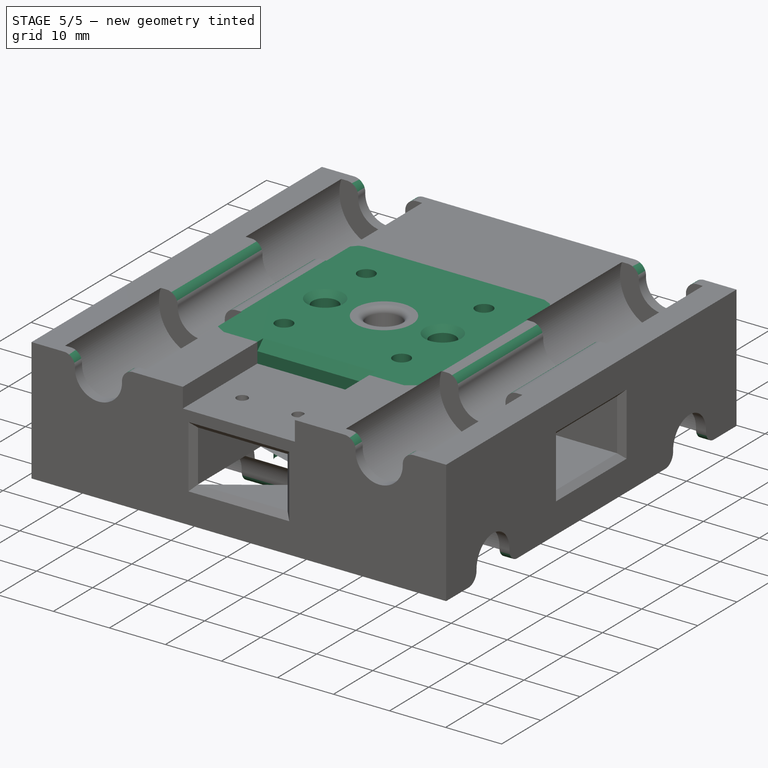
[diagram: stage 5 of 5 — iso view after this stage's code; geometry added in this stage tinted green]
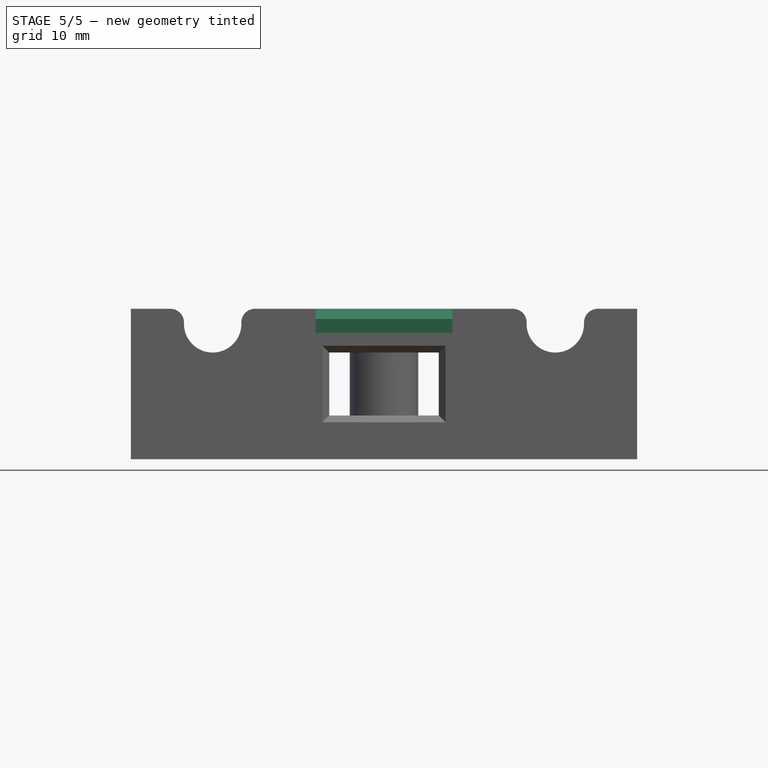
[diagram: stage 5 of 5 — front view after this stage's code; geometry added in this stage tinted green]
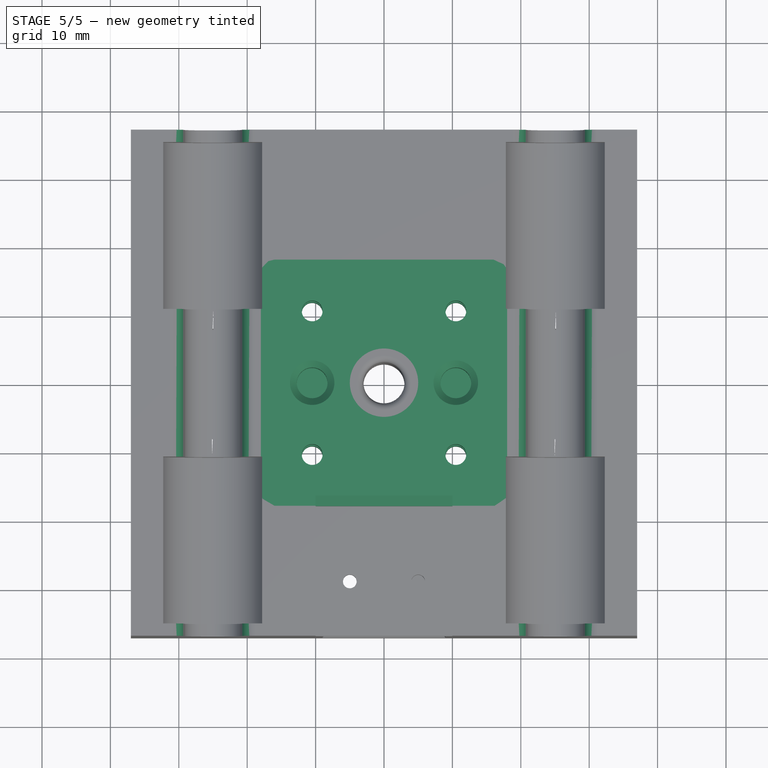
[diagram: stage 5 of 5 — top view after this stage's code; geometry added in this stage tinted green]
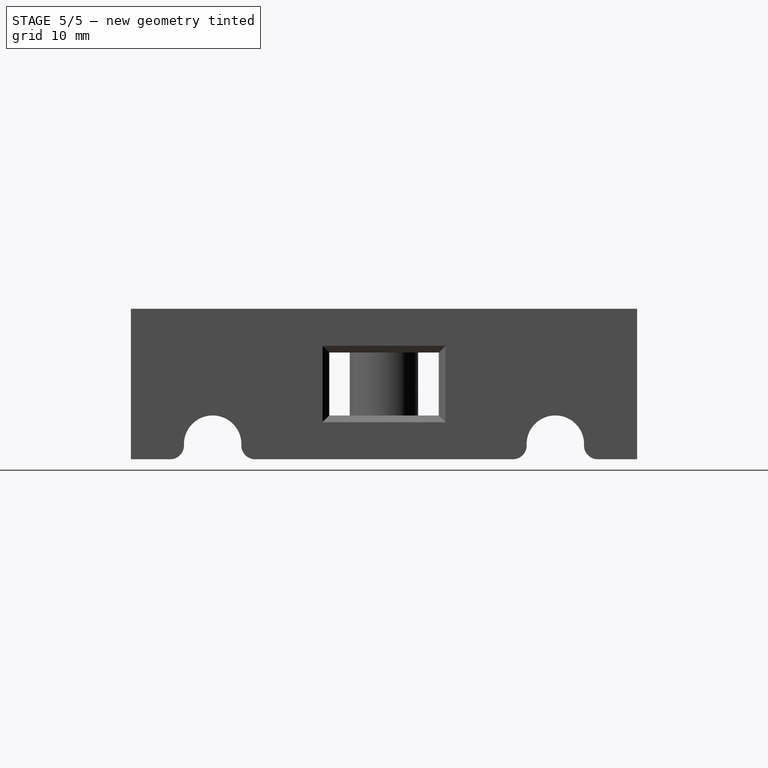
[diagram: stage 5 of 5 — right view after this stage's code; geometry added in this stage tinted green]
FEATURE [Sketcher::SketchObject] Sketch018  label="InnerCoreSketch"
  FullyConstrained = true
  MapMode = 5
  Support = -> [XY_Plane003]
  expr: Constraints[17] = Spreadsheet.core_inner_length
  expr: Constraints[14] = Spreadsheet.core_inner_length
  sketch-geometry (17):
    g0: LineSegment StartX=-16 StartY=18 StartZ=0 EndX=16 EndY=18 EndZ=0
    g1: LineSegment StartX=18 StartY=16 StartZ=0 EndX=18 EndY=-16 EndZ=0
    g2: LineSegment StartX=16 StartY=-18 StartZ=0 EndX=-16 EndY=-18 EndZ=0
    g3: LineSegment StartX=-18 StartY=-16 StartZ=0 EndX=-18 EndY=16 EndZ=0
    g4: ArcOfCircle CenterX=16 CenterY=16 CenterZ=0 NormalX=0 NormalY=0 NormalZ=1 AngleXU=0 Radius=2 StartAngle=5.618e-13 EndAngle=1.5708
    g5: ArcOfCircle CenterX=-16 CenterY=16 CenterZ=0 NormalX=0 NormalY=0 NormalZ=1 AngleXU=0 Radius=2 StartAngle=1.5708 EndAngle=3.14159
    g6: ArcOfCircle CenterX=-16 CenterY=-16 CenterZ=0 NormalX=0 NormalY=0 NormalZ=1 AngleXU=0 Radius=2 StartAngle=3.14159 EndAngle=4.71239
    g7: ArcOfCircle CenterX=16 CenterY=-16 CenterZ=0 NormalX=0 NormalY=0 NormalZ=1 AngleXU=0 Radius=2 StartAngle=4.71239 EndAngle=6.28319
    g8: Circle CenterX=0 CenterY=0 CenterZ=0 NormalX=0 NormalY=0 NormalZ=1 AngleXU=0 Radius=5
    g9: Circle CenterX=-10.5 CenterY=10.5 CenterZ=0 NormalX=0 NormalY=0 NormalZ=1 AngleXU=0 Radius=1.525
    g10: Circle CenterX=10.5 CenterY=10.5 CenterZ=0 NormalX=0 NormalY=0 NormalZ=1 AngleXU=0 Radius=1.525
    g11: Circle CenterX=10.5 CenterY=-10.5 CenterZ=0 NormalX=0 NormalY=0 NormalZ=1 AngleXU=0 Radius=1.525
    g12: Circle CenterX=-10.5 CenterY=-10.5 CenterZ=0 NormalX=0 NormalY=0 NormalZ=1 AngleXU=0 Radius=1.525
    g13: Circle CenterX=-10.5 CenterY=10.5 CenterZ=0 NormalX=0 NormalY=0 NormalZ=1 AngleXU=0 Radius=6.5
    g14: Circle CenterX=10.5 CenterY=10.5 CenterZ=0 NormalX=0 NormalY=0 NormalZ=1 AngleXU=0 Radius=6.5
    g15: Circle CenterX=-10.5 CenterY=-10.5 CenterZ=0 NormalX=0 NormalY=0 NormalZ=1 AngleXU=0 Radius=6.5
    g16: Circle CenterX=10.5 CenterY=-10.5 CenterZ=0 NormalX=0 NormalY=0 NormalZ=1 AngleXU=0 Radius=6.5
  constraints (38):
    c: Horizontal(g0)
    c: Horizontal(g2)
    c: Vertical(g1)
    c: Vertical(g3)
    c: Tangent(g0,g4) = 1.5708
    c: Tangent(g1,g4) = 1.5708
    c: Tangent(g0,g5) = 1.5708
    c: Tangent(g3,g5) = 1.5708
    c: Tangent(g2,g6) = 1.5708
    c: Tangent(g3,g6) = 1.5708
    c: Tangent(g1,g7) = 1.5708
    c: Tangent(g2,g7) = 1.5708
    c: Symmetric(g4,g6,g-1)
    c: Symmetric(g5,g7,g-1)
    c: DistanceX(g3,g1) = 36
    c: Radius(g6) = 2
    c: Equal(g6,g5)
    c: DistanceY(g2,g0) = 36
    c: Coincident(g8,g-1)
    c: Diameter(g8) = 10
    c: Symmetric(g9,g11,g8)
    c: Symmetric(g10,g12,g8)
    c: Diameter(g9) = 3.05
    c: Equal(g9,g10)
    c: Equal(g9,g11)
    c: Equal(g9,g12)
    c: Horizontal(g9,g10)
    c: Vertical(g9,g12)
    c: Coincident(g13,g9)
    c: Coincident(g14,g10)
    c: Coincident(g15,g12)
    c: Coincident(g16,g11)
    c: Diameter(g13) = 13
    c: Equal(g13,g14)
    c: Equal(g13,g16)
    c: Equal(g13,g15)
    c: DistanceX(g9,g10) = 21
    c: DistanceY(g11,g10) = 21
FEATURE [PartDesign::Pad] Pad005
  Direction = (1,1,1)
  Length = 6.4
  Length2 = 100
  Profile = -> Sketch018
  Type = 0
  expr: Length = (Spreadsheet.core_height - Spreadsheet.belt_hole_height) / 2
FEATURE [PartDesign::Body] Body003  label="InnerCoreTop"
  Group = -> [Sketch019,Pad006,Chamfer004]
  Origin = -> Origin004
  Placement = pos=(0,0,22) rot=(0,0,1;0rad)
  Tip = -> Chamfer004
  expr: .Placement.Base.z = Spreadsheet.core_height
FEATURE [Part::MultiFuse] Fusion  label="CoreBlock"
  Shapes = -> [Body001,Body002,Body003,Body004]
FEATURE [Part::Cut] Cut
  Base = -> Fusion
  Tool = -> Fusion001
FEATURE [Part::Fillet] Fillet006
  Base = -> Cut
  Edges = 24 edges r=2: [Edge136,Edge140,Edge144,Edge159,Edge163,Edge167,Edge170,Edge171,Edge180,Edge182,Edge186,Edge306,Edge310,Edge314,Edge318,Edge322,Edge345,Edge354,Edge371,Edge379,Edge385,Edge396,Edge418,Edge426]
FEATURE [Part::Chamfer] Chamfer
  Base = -> Fillet006
  Edges = 2 edges r=1.5: [Edge260,Edge357]
FEATURE [App::Part] Part  label="BearingsBlock"
  Group = -> [Body001,Body002,Body003,Body004,Fusion,Body005,Body006,Fusion001,Body007,Body008,Cut,Fillet006,Chamfer]
  Origin = -> Origin
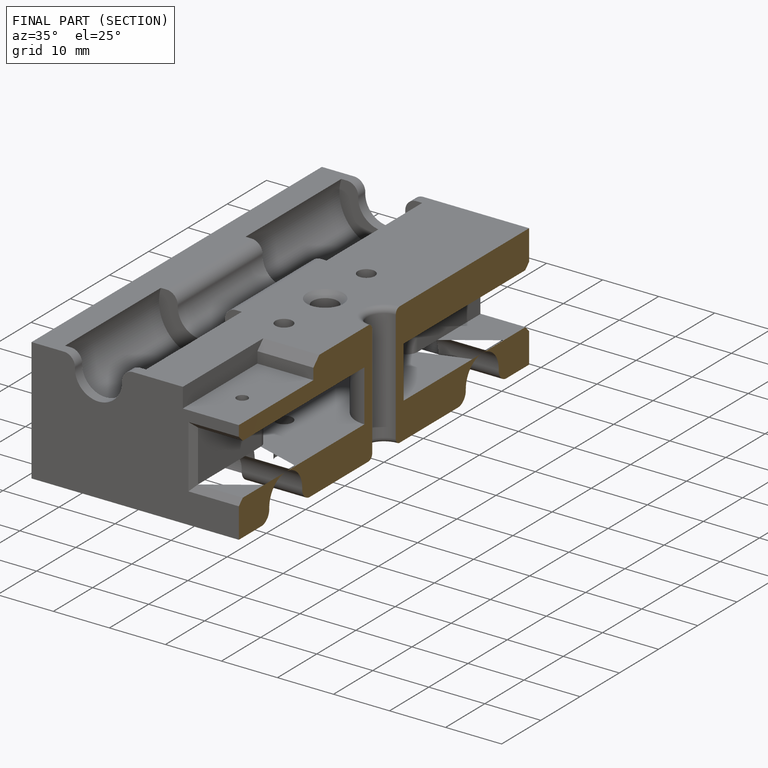
[diagram: finished part — half-section view (interior)]
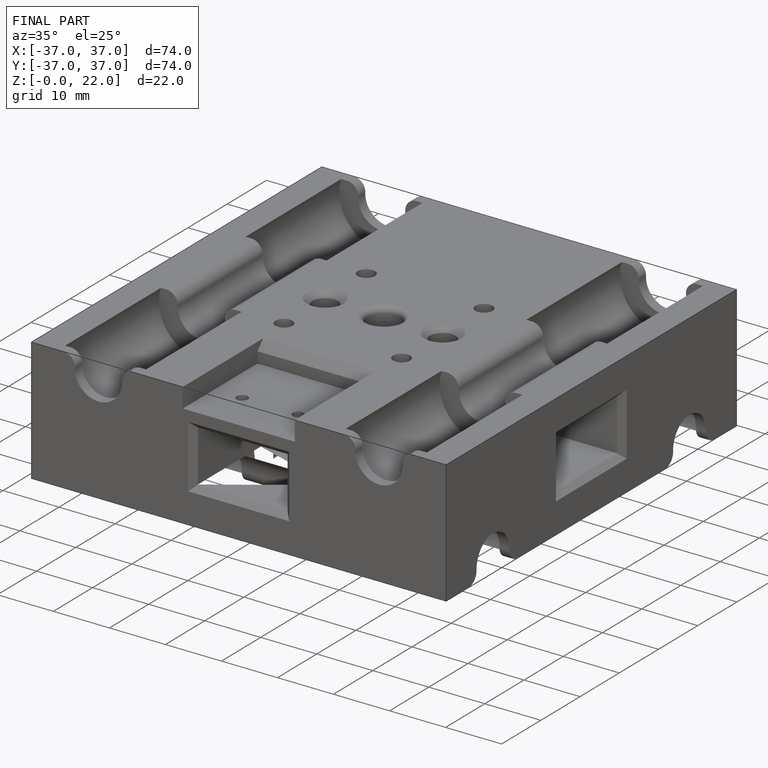
[diagram: finished part — iso view with bounding-box wireframe]
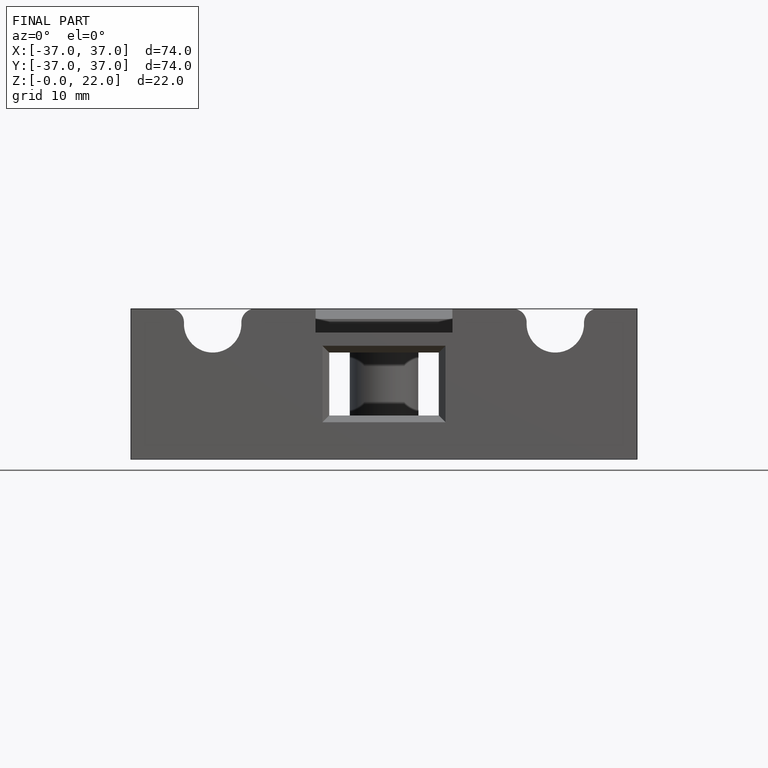
[diagram: finished part — front view with bounding-box wireframe]
